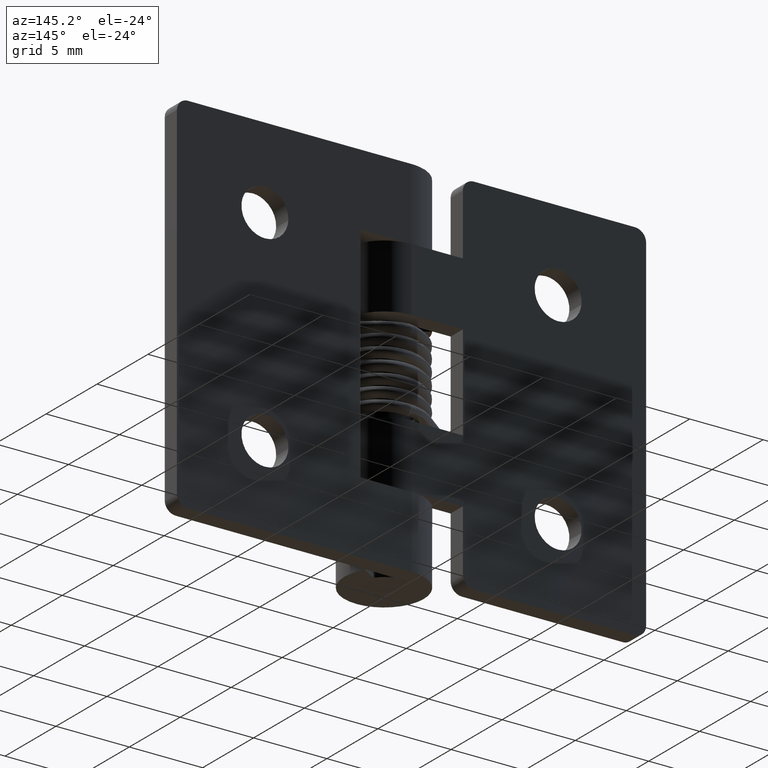
[diagram: clean part render]
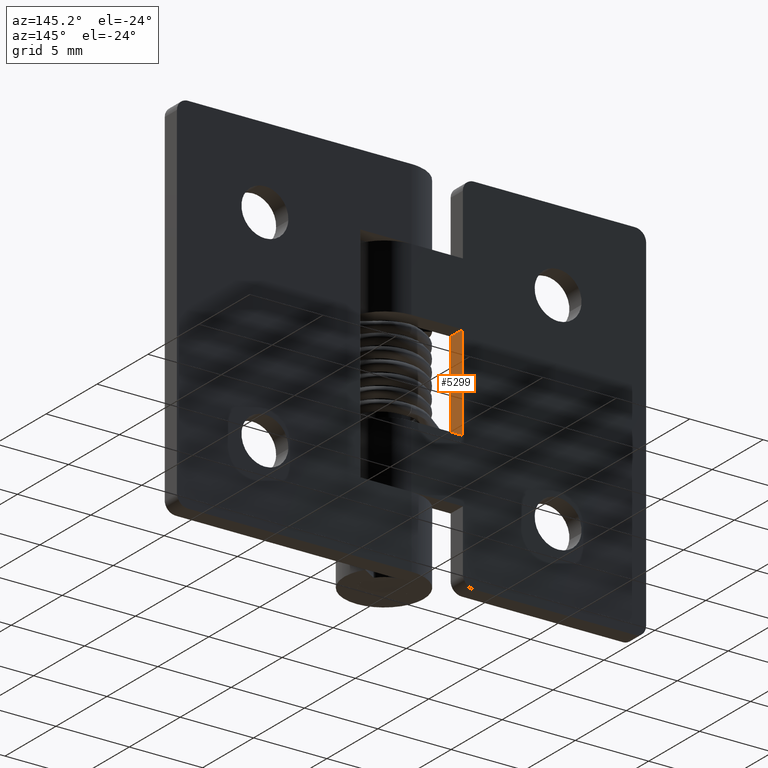
[diagram: same view with one face highlighted and labeled with its STEP entity id]
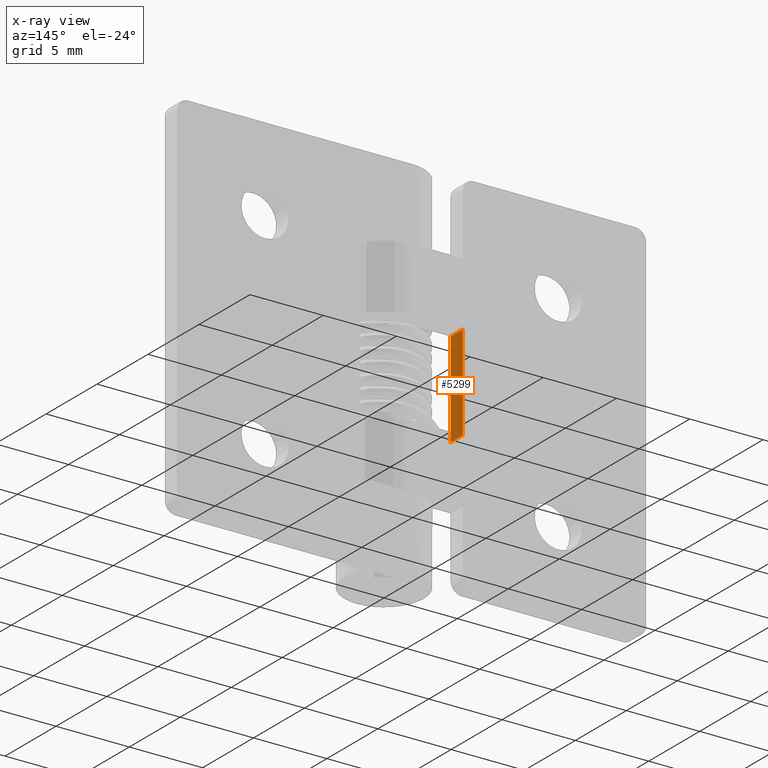
[diagram: x-ray of the same camera — body ghosted, the highlighted face saturated]
A machine part, auxiliary view. The second image highlights one B-rep face of the part: STEP entity #5299.
The next image is the same camera in x-ray: the body ghosted, the highlighted face saturated — about 0% of this face is hidden behind the body in this view.
In plain terms, the highlighted face is a freeform B-spline surface patch.
Its self-contained STEP definition (entity closure, byte-faithful):
#5152=CARTESIAN_POINT('',(-3.500000000000000,2.700005000000000,9.249992000000001));
#5153=VERTEX_POINT('',#5152);
#5159=CARTESIAN_POINT('',(-3.500000000000000,1.500000000000000,9.249992000000001));
#5160=VERTEX_POINT('',#5159);
#5161=CARTESIAN_POINT('',(-3.500000000000000,2.700005000000000,9.249992000000001));
#5162=CARTESIAN_POINT('',(-3.500000000000000,1.500000000000000,9.249992000000001));
#5163=QUASI_UNIFORM_CURVE('',1,(#5161,#5162),.UNSPECIFIED.,.F.,.U.);
#5164=EDGE_CURVE('',#5153,#5160,#5163,.T.);
#5258=CARTESIAN_POINT('',(-3.500000000000000,1.499999999999946,15.749992000000001));
#5259=VERTEX_POINT('',#5258);
#5265=CARTESIAN_POINT('',(-3.500000000000000,2.700005000000000,15.749992000000001));
#5266=VERTEX_POINT('',#5265);
#5267=CARTESIAN_POINT('',(-3.500000000000000,2.700005000000000,15.749992000000001));
#5268=CARTESIAN_POINT('',(-3.500000000000000,1.499999999999946,15.749992000000001));
#5269=QUASI_UNIFORM_CURVE('',1,(#5267,#5268),.UNSPECIFIED.,.F.,.U.);
#5270=EDGE_CURVE('',#5266,#5259,#5269,.T.);
#5280=CARTESIAN_POINT('',(-3.500000000000000,1.440059752575786,16.074667391300618));
#5281=CARTESIAN_POINT('',(-3.500000000000000,1.440059752575786,8.925317306073724));
#5282=CARTESIAN_POINT('',(-3.500000000000000,2.759945279610803,16.074667391300618));
#5283=CARTESIAN_POINT('',(-3.500000000000000,2.759945279610803,8.925317306073724));
#5284=B_SPLINE_SURFACE_WITH_KNOTS('',1,1,((#5280,#5282),(#5281,#5283)),.UNSPECIFIED.,.F.,.F.,.U.,(2,2),(2,2),(0.0,7.149350085226898),(0.041708334948495,0.958291687403247),.UNSPECIFIED.);
#5285=CARTESIAN_POINT('',(-3.500000000000000,1.499999999999946,15.749992000000001));
#5286=CARTESIAN_POINT('',(-3.500000000000000,1.500000000000000,9.249992000000001));
#5287=QUASI_UNIFORM_CURVE('',1,(#5285,#5286),.UNSPECIFIED.,.F.,.U.);
#5288=EDGE_CURVE('',#5259,#5160,#5287,.T.);
#5289=ORIENTED_EDGE('',*,*,#5288,.T.);
#5290=ORIENTED_EDGE('',*,*,#5164,.F.);
#5291=CARTESIAN_POINT('',(-3.500000000000000,2.700005000000000,9.249992000000001));
#5292=CARTESIAN_POINT('',(-3.500000000000000,2.700005000000000,15.749992000000001));
#5293=QUASI_UNIFORM_CURVE('',1,(#5291,#5292),.UNSPECIFIED.,.F.,.U.);
#5294=EDGE_CURVE('',#5153,#5266,#5293,.T.);
#5295=ORIENTED_EDGE('',*,*,#5294,.T.);
#5296=ORIENTED_EDGE('',*,*,#5270,.T.);
#5297=EDGE_LOOP('',(#5289,#5290,#5295,#5296));
#5298=FACE_OUTER_BOUND('',#5297,.T.);
#5299=ADVANCED_FACE('',(#5298),#5284,.T.);